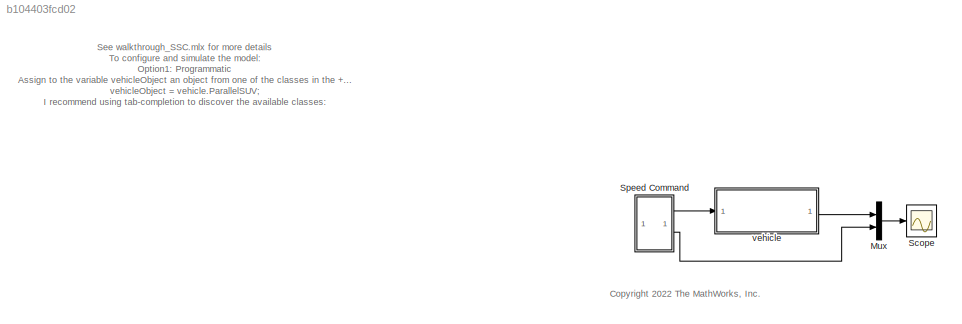
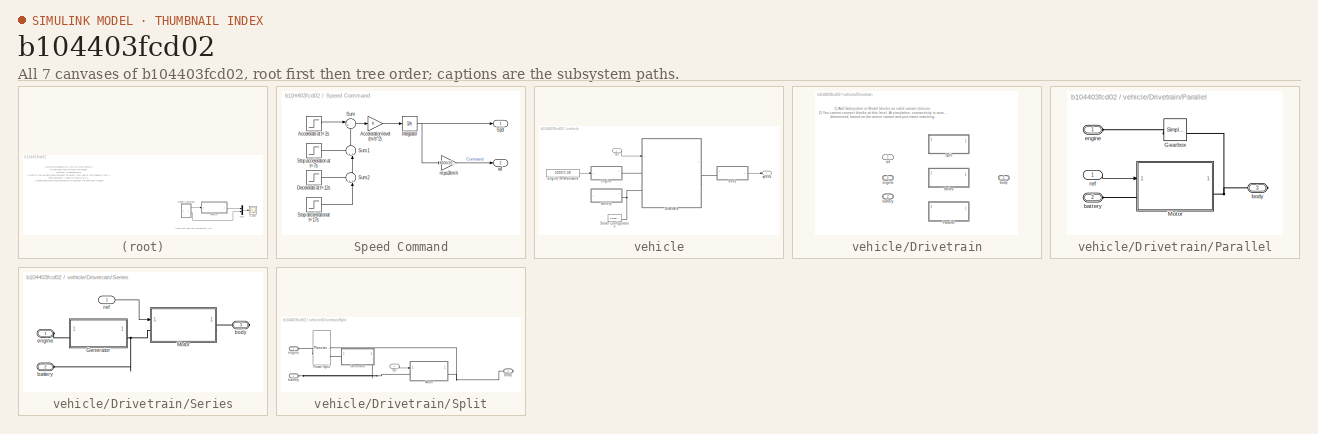
[diagram: thumbnail index - all 7 canvases of the model, root first then tree order]
MODEL slx_b104403fcd02
KIND model
CONFIG AbsTol = auto
CONFIG EnableMultiTasking = off
CONFIG FixedStep = auto
CONFIG MaxStep = auto
CONFIG MinStep = auto
CONFIG PreLoadFcn = vehicleObject = vehicle.ParallelSUV;\n
CONFIG RelTol = 1e-3
CONFIG SampleTimeConstraint = Unconstrained
CONFIG SolverName = VariableStepAuto
CONFIG StartTime = 0.0
CONFIG StopTime = 10.0
BLOCK [Mux] Mux
  DisplayOption = bar
  Inputs = 2
BLOCK [Scope] Scope
  Floating = off
  NumInputPorts = 1
  ScopeSpecificationString = Simulink.scopes.TimeScopeBlockCfg('CurrentConfiguration', extmgr.ConfigurationSet(extmgr.Configuration('Core','General UI',true),extmgr.Configuration('Core','Source UI',true),extmgr.Configuration('Sources','WiredSimulink',true,'DataLoggingVariableName','ScopeData1'),extmgr.Configuration('Visuals','Time Domain',true,'SerializedDisplays',{struct('MinYLimReal','51.69441','MaxYLimReal','74.25618','YLa...<+1424ch>
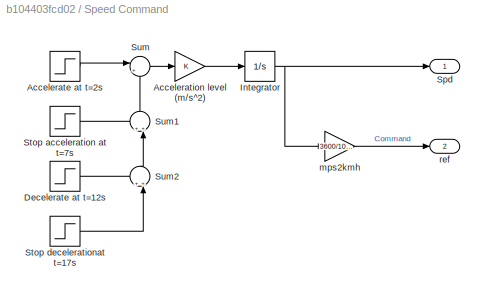
BLOCK [SubSystem] Speed Command
BLOCK [Step] Speed Command/Accelerate at t=2s
  SampleTime = 0
  Time = 2
BLOCK [Gain] Speed Command/Acceleration level (m//s^2)
BLOCK [Step] Speed Command/Decelerate at t=12s
  After = -1
  SampleTime = 0
  Time = 12
BLOCK [Integrator] Speed Command/Integrator
  InitialCondition = 15
BLOCK [Outport] Speed Command/Spd
  VectorParamsAs1DForOutWhenUnconnected = off
BLOCK [Step] Speed Command/Stop acceleration at t=7s
  After = -1
  SampleTime = 0
  Time = 7
BLOCK [Step] Speed Command/Stop decelerationat t=17s
  SampleTime = 0
  Time = 17
BLOCK [Sum] Speed Command/Sum
  Inputs = |++
BLOCK [Sum] Speed Command/Sum1
  Inputs = ++|
  NameLocation = right
BLOCK [Sum] Speed Command/Sum2
  Inputs = ++|
  NameLocation = right
BLOCK [Gain] Speed Command/mps2kmh
  Gain = 3600/1000
BLOCK [Outport] Speed Command/ref
  Port = 2
  VectorParamsAs1DForOutWhenUnconnected = off
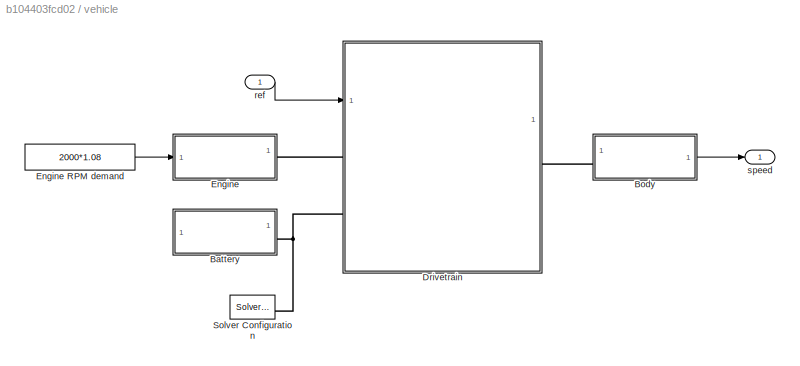
BLOCK [SubSystem] vehicle
BLOCK [SubSystem] vehicle/Battery
  ReferencedSubsystem = battery_ss
  obj = obj.Battery
BLOCK [SubSystem] vehicle/Body
  ReferencedSubsystem = body_ss
  obj = obj.Body
BLOCK [SubSystem] vehicle/Drivetrain
  LabelModeActiveChoice = drivetrain.Split
  Variant = on
  VariantControlMode = label
BLOCK [SubSystem] vehicle/Drivetrain/Parallel
  VariantControl = drivetrain.Parallel
BLOCK [Reference] vehicle/Drivetrain/Parallel/Gearbox  REF=sdl_lib/Gears/Simple Gear
  SourceBlock = sdl_lib/Gears/Simple Gear
  SourceType = Simple Gear
BLOCK [SubSystem] vehicle/Drivetrain/Parallel/Motor
  ReferencedSubsystem = motor_ss
  obj = obj.Motor
BLOCK [PMIOPort] vehicle/Drivetrain/Parallel/battery
  Port = 2
  Side = Left
BLOCK [PMIOPort] vehicle/Drivetrain/Parallel/body
  Port = 3
  Side = Right
BLOCK [PMIOPort] vehicle/Drivetrain/Parallel/engine
  Side = Left
BLOCK [Inport] vehicle/Drivetrain/Parallel/ref
BLOCK [SubSystem] vehicle/Drivetrain/Series
  VariantControl = drivetrain.Series
BLOCK [SubSystem] vehicle/Drivetrain/Series/Generator
  ReferencedSubsystem = generator_ss
  obj = obj.Generator
BLOCK [SubSystem] vehicle/Drivetrain/Series/Motor
  ReferencedSubsystem = motor_ss
  obj = obj.Motor
BLOCK [PMIOPort] vehicle/Drivetrain/Series/battery
  Port = 2
  Side = Left
BLOCK [PMIOPort] vehicle/Drivetrain/Series/body
  Port = 3
  Side = Right
BLOCK [PMIOPort] vehicle/Drivetrain/Series/engine
  Side = Left
BLOCK [Inport] vehicle/Drivetrain/Series/ref
BLOCK [SubSystem] vehicle/Drivetrain/Split
  VariantControl = drivetrain.Split
BLOCK [SubSystem] vehicle/Drivetrain/Split/Generator
  ReferencedSubsystem = generator_ss
  obj = obj.Generator
BLOCK [SubSystem] vehicle/Drivetrain/Split/Motor
  ReferencedSubsystem = motor_ss
  obj = obj.Motor
BLOCK [Reference] vehicle/Drivetrain/Split/Power Split  REF=sdl_lib/Gears/Planetary Gear
  NameLocation = top
  SourceBlock = sdl_lib/Gears/Planetary Gear
  SourceType = Planetary Gear
BLOCK [PMIOPort] vehicle/Drivetrain/Split/battery
  Port = 2
  Side = Left
BLOCK [PMIOPort] vehicle/Drivetrain/Split/body
  Port = 3
  Side = Right
BLOCK [PMIOPort] vehicle/Drivetrain/Split/engine
  Side = Left
BLOCK [Inport] vehicle/Drivetrain/Split/ref
BLOCK [PMIOPort] vehicle/Drivetrain/battery
  Port = 2
  Side = Left
BLOCK [PMIOPort] vehicle/Drivetrain/body
  Port = 3
  Side = Right
BLOCK [PMIOPort] vehicle/Drivetrain/engine
  Side = Left
BLOCK [Inport] vehicle/Drivetrain/ref
BLOCK [SubSystem] vehicle/Engine
  ReferencedSubsystem = engine_ss
  obj = obj.Engine
BLOCK [Constant] vehicle/Engine RPM demand
  Value = 2000*1.08
BLOCK [Reference] vehicle/Solver Configuration  REF=nesl_utility/Solver
Configuration
  SourceBlock = nesl_utility/Solver\nConfiguration
  SourceType = Solver\nConfiguration
BLOCK [Inport] vehicle/ref
BLOCK [Outport] vehicle/speed
ANNOTATION (root): See walkthrough_SSC.mlx for more details To configure and simulate the model: Option1: Programmatic Assign to the variable vehicleObject an object from one of the classes in the +vehicle package. For example: vehicleObject = vehicle.ParallelSUV; I recommend using tab-completion to discover the available classes: Option 2: Interactive App Launch the system configurator app: vehicleObject = vehicle....<+41ch>
ANNOTATION (root): <copyright redacted>
ANNOTATION vehicle/Drivetrain: 1) Add Subsystem or Model blocks as valid variant choices. 2) You cannot connect blocks at this level. At simulation, connectivity is automatically determined, based on the active variant and port name matching.
LINE Mux:1 -> Scope:1
LINE Speed Command/Accelerate at t=2s:1 -> Speed Command/Sum:1
LINE Speed Command/Acceleration level (m//s^2):1 -> Speed Command/Integrator:1
LINE Speed Command/Decelerate at t=12s:1 -> Speed Command/Sum2:1
NET Speed Command/Integrator:1 -> Speed Command/Spd:1, Speed Command/mps2kmh:1
LINE Speed Command/Stop acceleration at t=7s:1 -> Speed Command/Sum1:1
LINE Speed Command/Stop decelerationat t=17s:1 -> Speed Command/Sum2:2
LINE Speed Command/Sum1:1 -> Speed Command/Sum:2
LINE Speed Command/Sum2:1 -> Speed Command/Sum1:2
LINE Speed Command/Sum:1 -> Speed Command/Acceleration level (m//s^2):1
LINE Speed Command/mps2kmh:1 -> Speed Command/ref:1
LINE Speed Command:1 -> vehicle:1
LINE Speed Command:2 -> Mux:2
LINE vehicle/Body:1 -> vehicle/speed:1
LINE vehicle/Drivetrain/Parallel/ref:1 -> vehicle/Drivetrain/Parallel/Motor:1
LINE vehicle/Drivetrain/Series/ref:1 -> vehicle/Drivetrain/Series/Motor:1
LINE vehicle/Drivetrain/Split/ref:1 -> vehicle/Drivetrain/Split/Motor:1
LINE vehicle/Engine RPM demand:1 -> vehicle/Engine:1
LINE vehicle/ref:1 -> vehicle/Drivetrain:1
LINE vehicle:1 -> Mux:1
PNET net1: vehicle/Battery:RConn1 -- vehicle/Drivetrain:LConn2 -- vehicle/Solver Configuration:RConn1
PLINE vehicle/Body:LConn1 -- vehicle/Drivetrain:RConn1
PLINE vehicle/Drivetrain/Parallel/Gearbox:LConn1 -- vehicle/Drivetrain/Parallel/engine:RConn1
PNET net2: vehicle/Drivetrain/Parallel/Gearbox:RConn1 -- vehicle/Drivetrain/Parallel/Motor:RConn1 -- vehicle/Drivetrain/Parallel/body:RConn1
PLINE vehicle/Drivetrain/Parallel/Motor:LConn1 -- vehicle/Drivetrain/Parallel/battery:RConn1
PLINE vehicle/Drivetrain/Series/Generator:LConn1 -- vehicle/Drivetrain/Series/engine:RConn1
PNET net3: vehicle/Drivetrain/Series/Generator:RConn1 -- vehicle/Drivetrain/Series/Motor:LConn1 -- vehicle/Drivetrain/Series/battery:RConn1
PLINE vehicle/Drivetrain/Series/Motor:RConn1 -- vehicle/Drivetrain/Series/body:RConn1
PLINE vehicle/Drivetrain/Split/Generator:LConn1 -- vehicle/Drivetrain/Split/Power Split:RConn2
PNET net4: vehicle/Drivetrain/Split/Generator:RConn1 -- vehicle/Drivetrain/Split/Motor:LConn1 -- vehicle/Drivetrain/Split/battery:RConn1
PNET net5: vehicle/Drivetrain/Split/Motor:RConn1 -- vehicle/Drivetrain/Split/Power Split:RConn1 -- vehicle/Drivetrain/Split/body:RConn1
PLINE vehicle/Drivetrain/Split/Power Split:LConn1 -- vehicle/Drivetrain/Split/engine:RConn1
PLINE vehicle/Drivetrain:LConn1 -- vehicle/Engine:RConn1
note: NET lines group one-source signal fan-out (src -> all destinations, sorted); 1:1 wires keep LINE; PNET lines group multi-terminal physical nets as a canonical sorted terminal list (undirected conserving connections); 2-terminal nets keep the pairwise PLINE form
